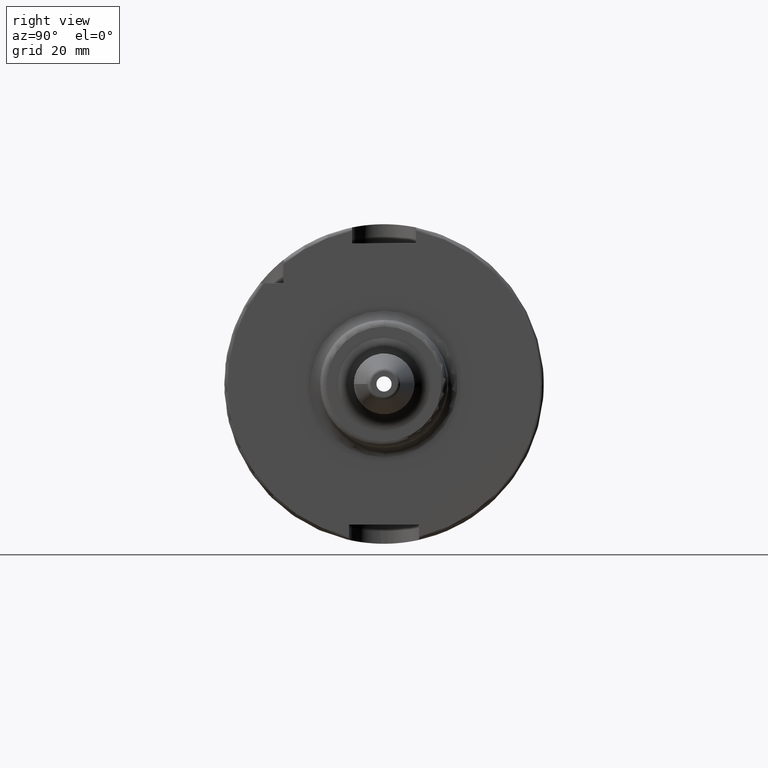
[diagram: clean part render]
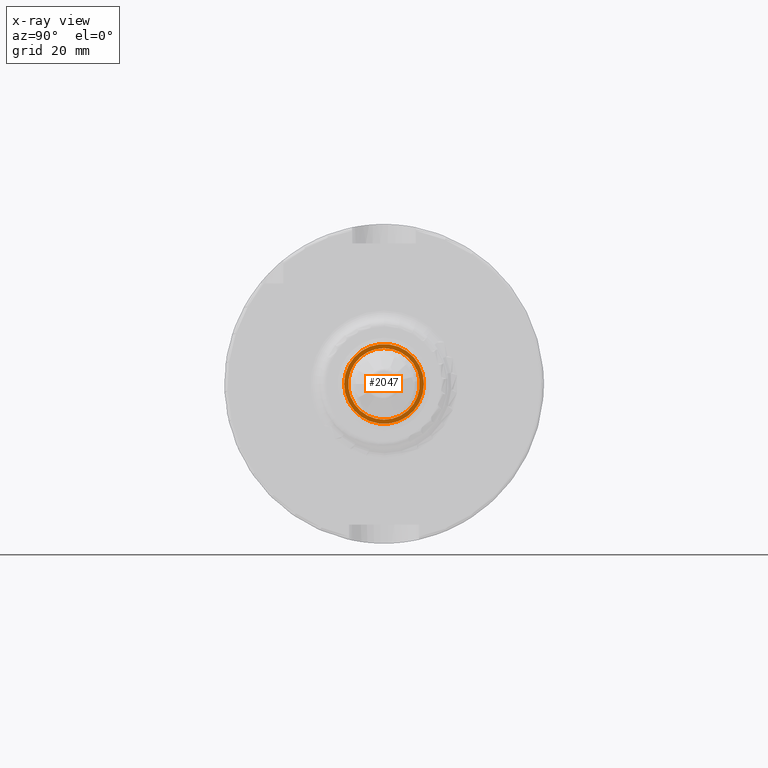
[diagram: x-ray — body ghosted, one internal face saturated and labeled with its STEP entity id]
A machine part, right view, then the same camera in x-ray: the body is ghosted and one INTERNAL B-rep face — a face not visible from any outside direction — is saturated and labeled: STEP entity #2047.
In plain terms, the highlighted planar face has unit normal (-1, 0, 0).
Its self-contained STEP definition (entity closure, byte-faithful):
#359=FACE_BOUND('',#622,.T.);
#394=PLANE('',#2306);
#497=FACE_OUTER_BOUND('',#621,.T.);
#621=EDGE_LOOP('',(#1840));
#622=EDGE_LOOP('',(#1841));
#750=CIRCLE('',#2297,11.188101);
#755=CIRCLE('',#2305,12.5);
#963=VERTEX_POINT('',#4405);
#967=VERTEX_POINT('',#4418);
#1260=EDGE_CURVE('',#963,#963,#750,.T.);
#1266=EDGE_CURVE('',#967,#967,#755,.T.);
#1840=ORIENTED_EDGE('',*,*,#1266,.F.);
#1841=ORIENTED_EDGE('',*,*,#1260,.T.);
#2047=ADVANCED_FACE('',(#497,#359),#394,.F.);
#2297=AXIS2_PLACEMENT_3D('',#4407,#2861,#2862);
#2305=AXIS2_PLACEMENT_3D('',#4420,#2878,#2879);
#2306=AXIS2_PLACEMENT_3D('',#4421,#2880,#2881);
#2861=DIRECTION('center_axis',(-1.,0.,0.));
#2862=DIRECTION('ref_axis',(0.,0.,1.));
#2878=DIRECTION('center_axis',(-1.,0.,0.));
#2879=DIRECTION('ref_axis',(0.,0.,1.));
#2880=DIRECTION('center_axis',(-1.,0.,0.));
#2881=DIRECTION('ref_axis',(0.,0.,1.));
#4405=CARTESIAN_POINT('',(22.5,-1.37014720781873E-15,-11.188101));
#4407=CARTESIAN_POINT('Origin',(22.5,0.,0.));
#4418=CARTESIAN_POINT('',(22.5,-12.5,1.53080849893419E-15));
#4420=CARTESIAN_POINT('Origin',(22.5,0.,0.));
#4421=CARTESIAN_POINT('Origin',(22.5,10.,0.));